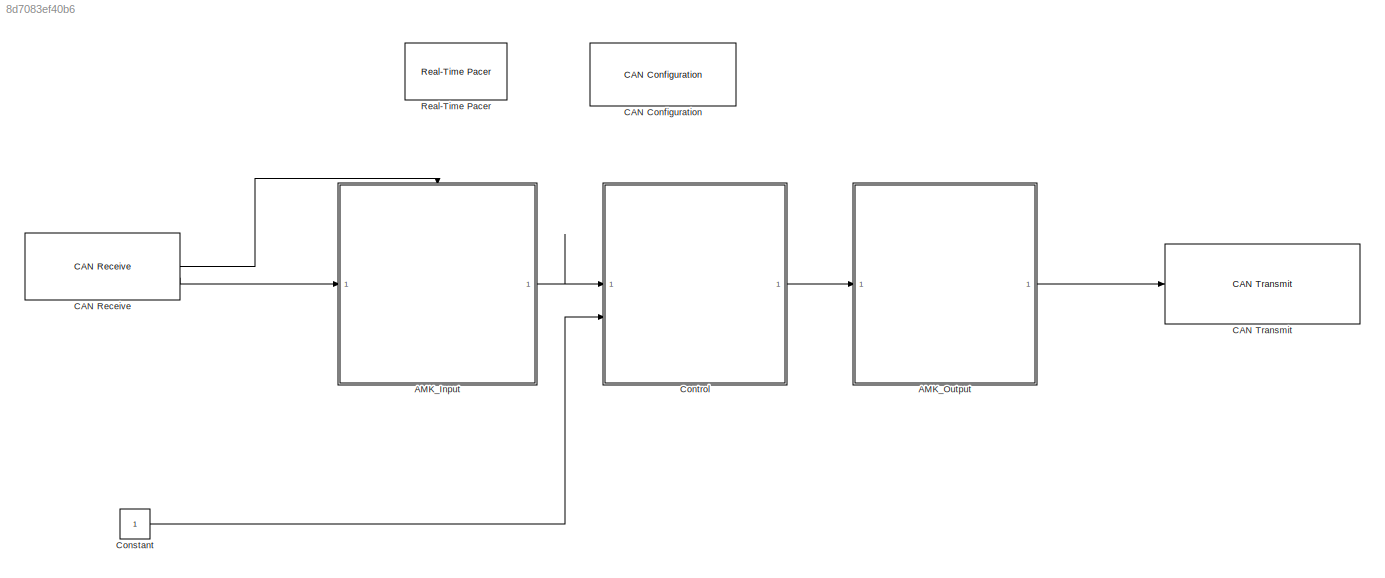
MODEL slx_8d7083ef40b6
KIND model
CONFIG AbsTol = auto
CONFIG EnableMultiTasking = on
CONFIG FixedStep = 0.005
CONFIG MaxStep = auto
CONFIG MinStep = auto
CONFIG RelTol = 1e-3
CONFIG SampleTimeConstraint = Unconstrained
CONFIG SolverName = FixedStepAuto
CONFIG StartTime = 0.0
CONFIG StopTime = inf
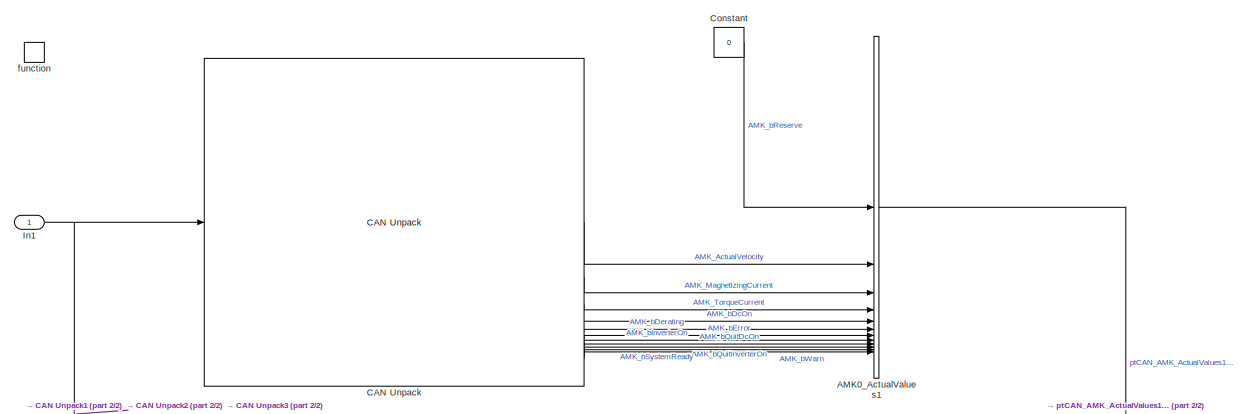
[diagram: AMK_Input - part 1/2, full width, top band]
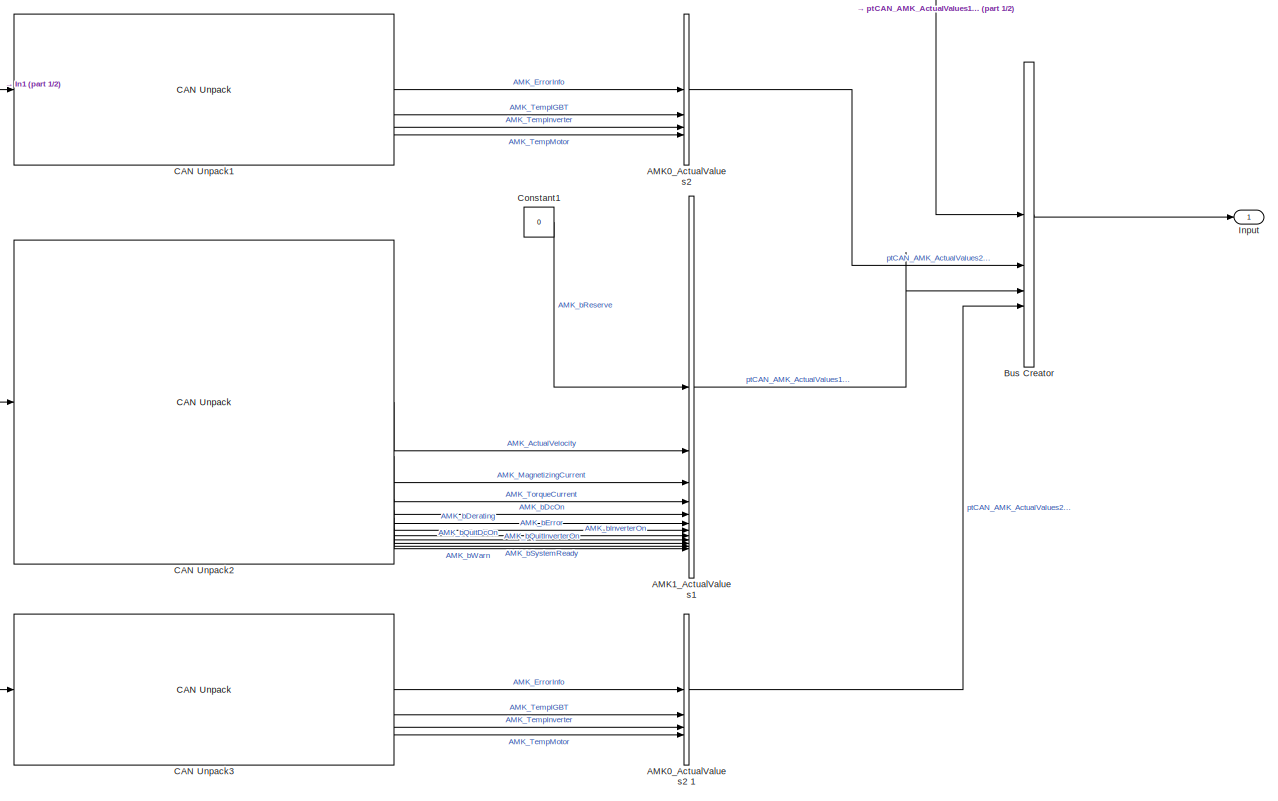
[diagram: AMK_Input - part 2/2, full width, bottom band]
BLOCK [SubSystem] AMK_Input
  TreatAsAtomicUnit = on
BLOCK [BusCreator] AMK_Input/AMK0_ActualValues1 
  DisplayOption = bar
  InheritFromInputs = on
  Inputs = 12
BLOCK [BusCreator] AMK_Input/AMK0_ActualValues2 
  DisplayOption = bar
  InheritFromInputs = on
  Inputs = 4
BLOCK [BusCreator] AMK_Input/AMK0_ActualValues2 1
  DisplayOption = bar
  InheritFromInputs = on
  Inputs = 4
BLOCK [BusCreator] AMK_Input/AMK1_ActualValues1
  DisplayOption = bar
  InheritFromInputs = on
  Inputs = 12
BLOCK [BusCreator] AMK_Input/Bus Creator
  DisplayOption = bar
  InheritFromInputs = on
  Inputs = 4
BLOCK [Reference] AMK_Input/CAN Unpack  REF=canmsglib/CAN Unpack
  LibrarySourceBlock = canlib/CAN Unpack
  SourceBlock = canmsglib/CAN Unpack
  SourceType = CAN Unpack
BLOCK [Reference] AMK_Input/CAN Unpack1  REF=canmsglib/CAN Unpack
  LibrarySourceBlock = canlib/CAN Unpack
  SourceBlock = canmsglib/CAN Unpack
  SourceType = CAN Unpack
BLOCK [Reference] AMK_Input/CAN Unpack2  REF=canmsglib/CAN Unpack
  LibrarySourceBlock = canlib/CAN Unpack
  SourceBlock = canmsglib/CAN Unpack
  SourceType = CAN Unpack
BLOCK [Reference] AMK_Input/CAN Unpack3  REF=canmsglib/CAN Unpack
  LibrarySourceBlock = canlib/CAN Unpack
  SourceBlock = canmsglib/CAN Unpack
  SourceType = CAN Unpack
BLOCK [Constant] AMK_Input/Constant
  Value = 0
BLOCK [Constant] AMK_Input/Constant1
  Value = 0
BLOCK [Inport] AMK_Input/In1
BLOCK [Outport] AMK_Input/Input
BLOCK [TriggerPort] AMK_Input/function
  StatesWhenEnabling = held
  TriggerType = function-call
  VariantControl = (inherit)
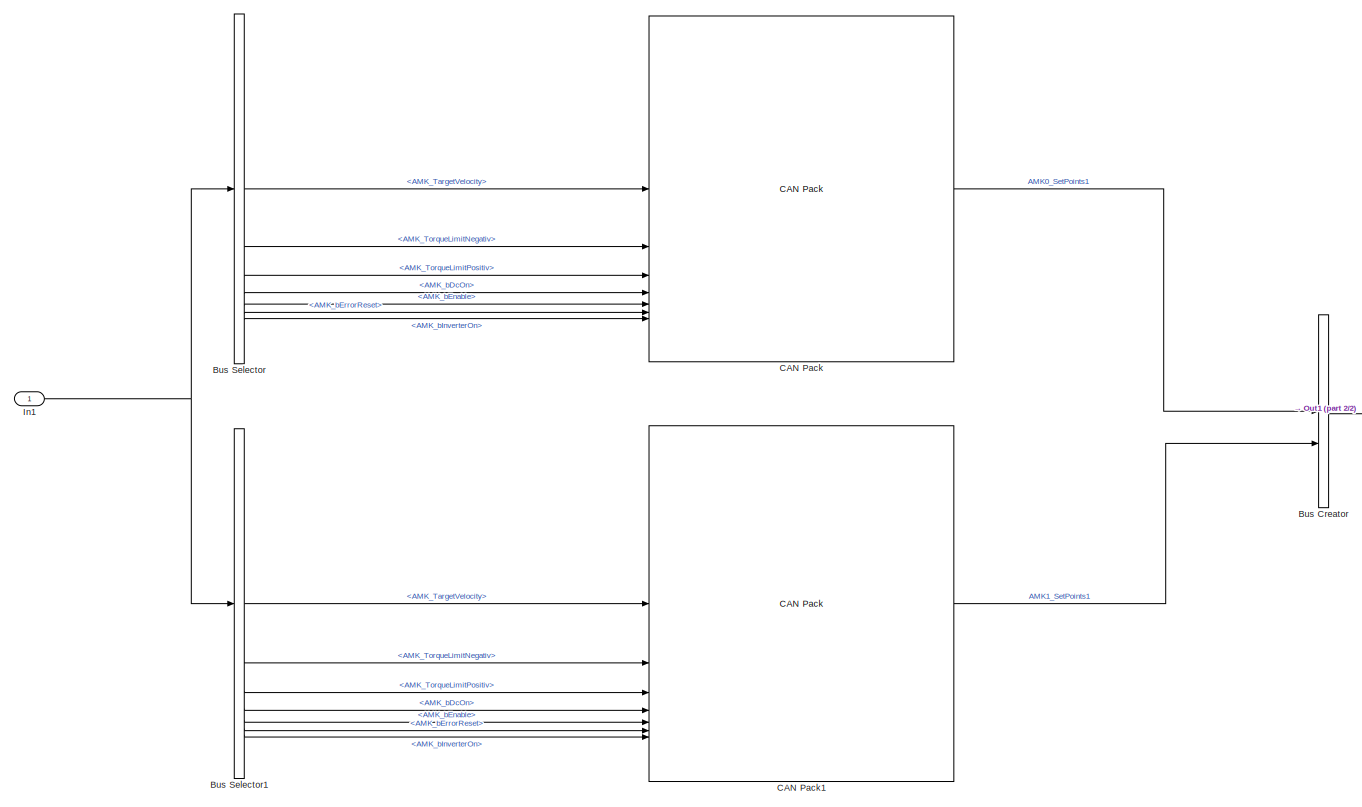
[diagram: AMK_Output - part 1/2, most of the canvas]
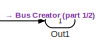
[diagram: AMK_Output - part 2/2, middle right region]
BLOCK [SubSystem] AMK_Output
BLOCK [BusCreator] AMK_Output/Bus Creator
  DisplayOption = bar
  InheritFromInputs = on
  Inputs = 2
BLOCK [BusSelector] AMK_Output/Bus Selector
  OutputSignals = ptCAN_AMK_Setpoints1_Right.AMK_TargetVelocity,ptCAN_AMK_Setpoints1_Right.AMK_TorqueLimitNegativ,ptCAN_AMK_Setpoints1_Right.AMK_TorqueLimitPositiv,ptCAN_AMK_Setpoints1_Right.AMK_bDcOn,ptCAN_AMK_Setpoints1_Right.AMK_bEnable,ptCAN_AMK_Setpoints1_Right.AMK_bErrorReset,ptCAN_AMK_Setpoints1_Right.AMK_bInverterOn
BLOCK [BusSelector] AMK_Output/Bus Selector1
  OutputSignals = ptCAN_AMK_Setpoints1_Left.AMK_TargetVelocity,ptCAN_AMK_Setpoints1_Left.AMK_TorqueLimitNegativ,ptCAN_AMK_Setpoints1_Left.AMK_TorqueLimitPositiv,ptCAN_AMK_Setpoints1_Left.AMK_bDcOn,ptCAN_AMK_Setpoints1_Left.AMK_bEnable,ptCAN_AMK_Setpoints1_Left.AMK_bErrorReset,ptCAN_AMK_Setpoints1_Left.AMK_bInverterOn
BLOCK [Reference] AMK_Output/CAN Pack  REF=canmsglib/CAN Pack
  LibrarySourceBlock = canlib/CAN Pack
  SourceBlock = canmsglib/CAN Pack
  SourceType = CAN Pack
BLOCK [Reference] AMK_Output/CAN Pack1  REF=canmsglib/CAN Pack
  LibrarySourceBlock = canlib/CAN Pack
  SourceBlock = canmsglib/CAN Pack
  SourceType = CAN Pack
BLOCK [Inport] AMK_Output/In1
BLOCK [Outport] AMK_Output/Out1
BLOCK [Reference] CAN Configuration  REF=canlib/CAN Configuration
  SourceBlock = canlib/CAN Configuration
  SourceType = CAN Configuration
BLOCK [Reference] CAN Receive  REF=canlib/CAN Receive
  SourceBlock = canlib/CAN Receive
  SourceType = CAN Receive
BLOCK [Reference] CAN Transmit  REF=canlib/CAN Transmit
  SourceBlock = canlib/CAN Transmit
  SourceType = CAN Transmit
BLOCK [Constant] Constant
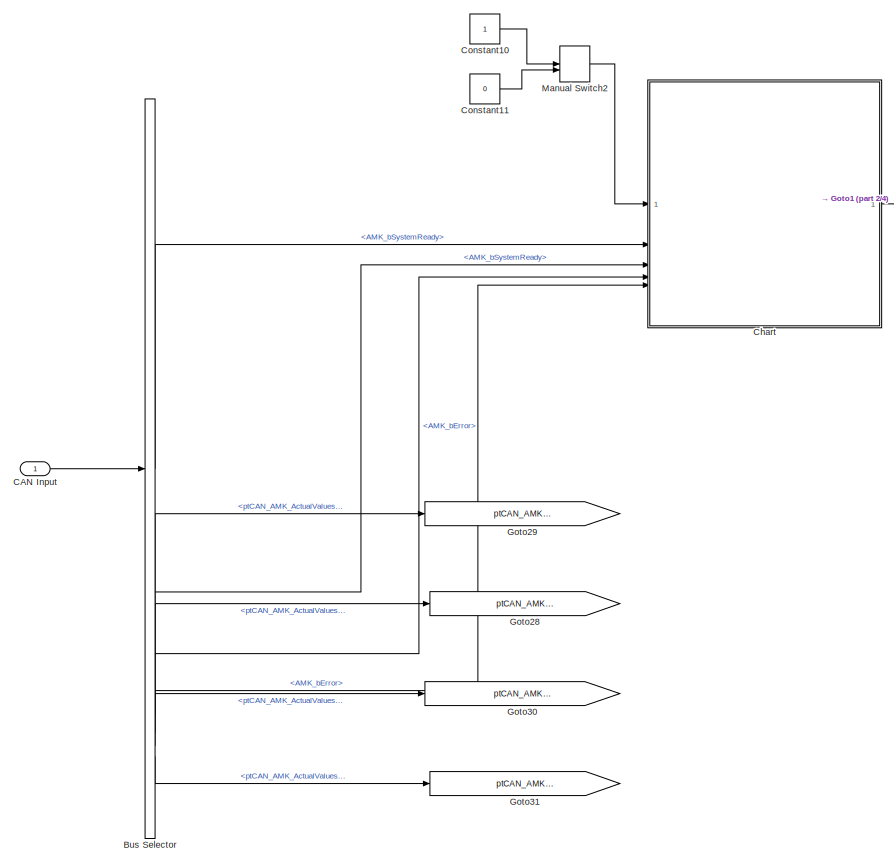
[diagram: Control - part 1/4, middle left region]
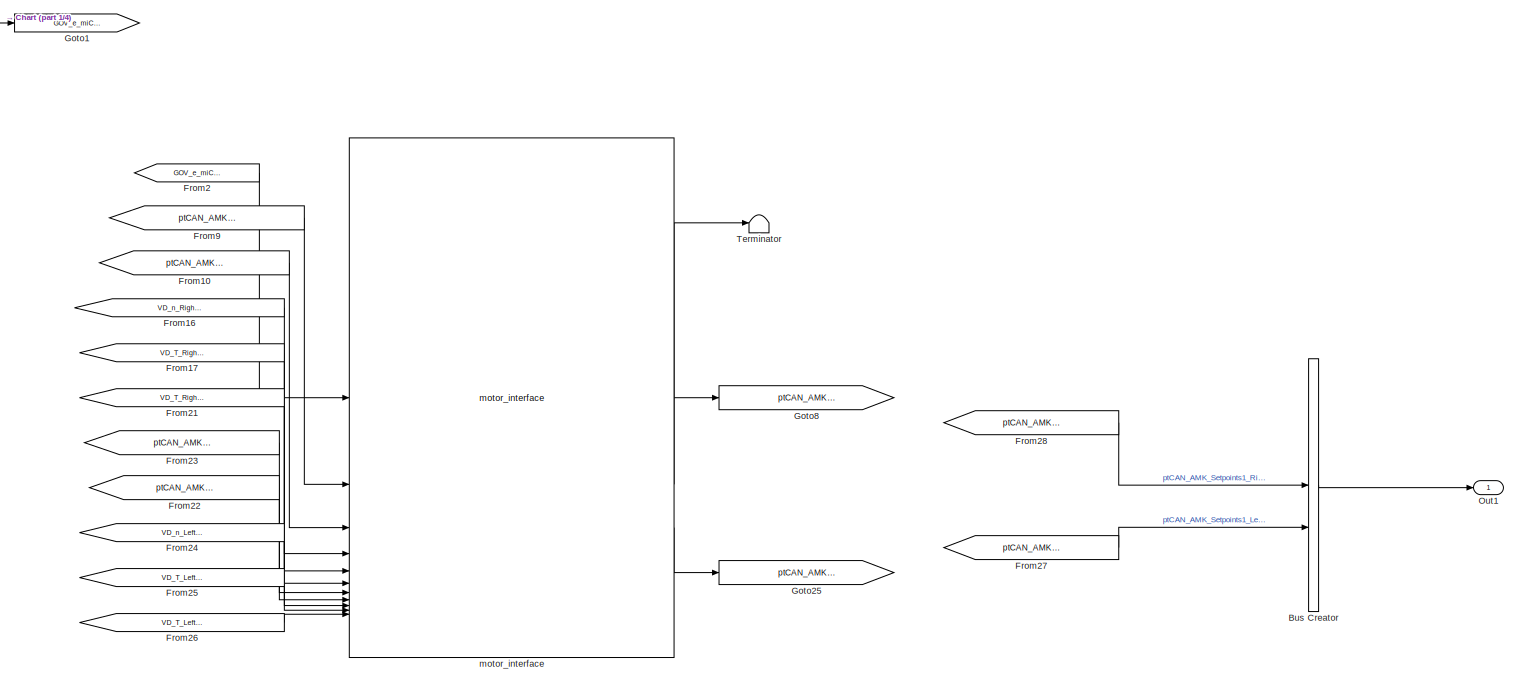
[diagram: Control - part 2/4, middle right region]
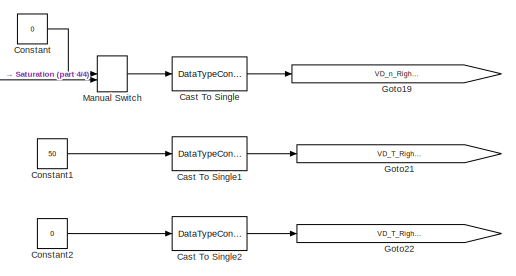
[diagram: Control - part 3/4, bottom right region]
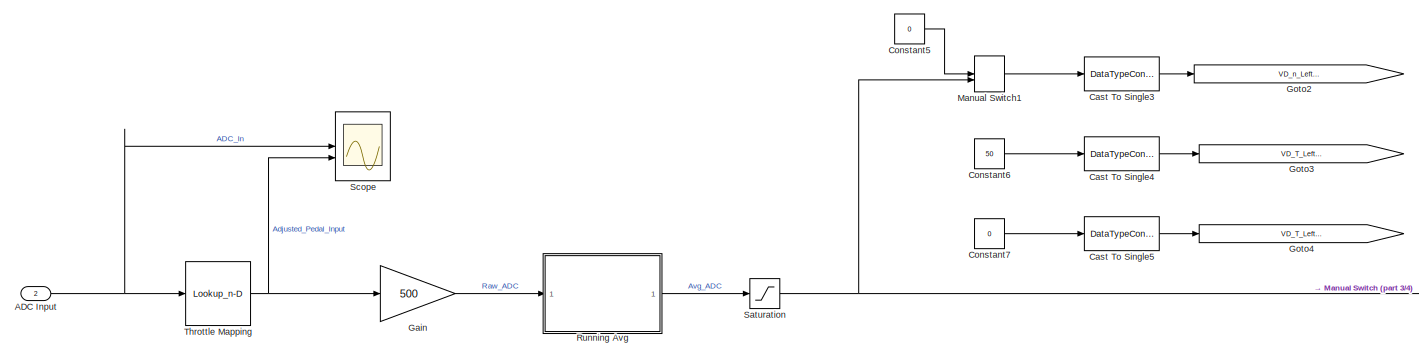
[diagram: Control - part 4/4, bottom left region]
BLOCK [SubSystem] Control
BLOCK [Inport] Control/ADC Input
  Port = 2
BLOCK [BusCreator] Control/Bus Creator
  DisplayOption = bar
  InheritFromInputs = on
  Inputs = 2
BLOCK [BusSelector] Control/Bus Selector
  OutputSignals = ptCAN_AMK_ActualValues1_Right.AMK_bSystemReady,ptCAN_AMK_ActualValues1_Left.AMK_bSystemReady,ptCAN_AMK_ActualValues1_Right.AMK_bError,ptCAN_AMK_ActualValues1_Left.AMK_bError,ptCAN_AMK_ActualValues1_Right,ptCAN_AMK_ActualValues2_Right,ptCAN_AMK_ActualValues1_Left,ptCAN_AMK_ActualValues2_Left
BLOCK [Inport] Control/CAN Input
BLOCK [DataTypeConversion] Control/Cast To Single
  OutDataTypeStr = single
  RndMeth = Floor
  SaturateOnIntegerOverflow = off
BLOCK [DataTypeConversion] Control/Cast To Single1
  OutDataTypeStr = single
  RndMeth = Floor
  SaturateOnIntegerOverflow = off
BLOCK [DataTypeConversion] Control/Cast To Single2
  OutDataTypeStr = single
  RndMeth = Floor
  SaturateOnIntegerOverflow = off
BLOCK [DataTypeConversion] Control/Cast To Single3
  OutDataTypeStr = single
  RndMeth = Floor
  SaturateOnIntegerOverflow = off
BLOCK [DataTypeConversion] Control/Cast To Single4
  OutDataTypeStr = single
  RndMeth = Floor
  SaturateOnIntegerOverflow = off
BLOCK [DataTypeConversion] Control/Cast To Single5
  OutDataTypeStr = single
  RndMeth = Floor
  SaturateOnIntegerOverflow = off
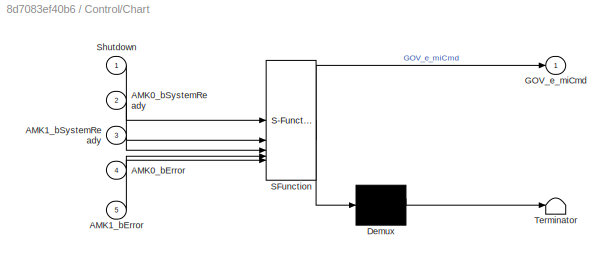
BLOCK [SubSystem] Control/Chart
  ErrorFcn = Stateflow.Translate.translate
  PermitHierarchicalResolution = ExplicitOnly
  SFBlockType = Chart
  TreatAsAtomicUnit = on
BLOCK [Demux] Control/Chart/ Demux 
  Outputs = 1
BLOCK [S-Function] Control/Chart/ SFunction 
  EnableBusSupport = on
  FunctionName = sf_sfun
  PortCounts = [5 2]
  SFcnIsStateOwnerBlock = off
  SFunctionDeploymentMode = off
  Tag = Stateflow S-Function 1
BLOCK [Terminator] Control/Chart/ Terminator 
BLOCK [Inport] Control/Chart/AMK0_bError
  Port = 4
BLOCK [Inport] Control/Chart/AMK0_bSystemReady
  Port = 2
BLOCK [Inport] Control/Chart/AMK1_bError
  Port = 5
BLOCK [Inport] Control/Chart/AMK1_bSystemReady
  Port = 3
BLOCK [Outport] Control/Chart/GOV_e_miCmd
BLOCK [Inport] Control/Chart/Shutdown
BLOCK [Constant] Control/Constant
  Value = 0
BLOCK [Constant] Control/Constant1
  Value = 50
BLOCK [Constant] Control/Constant10
BLOCK [Constant] Control/Constant11
  Value = 0
BLOCK [Constant] Control/Constant2
  Value = 0
BLOCK [Constant] Control/Constant5
  Value = 0
BLOCK [Constant] Control/Constant6
  Value = 50
BLOCK [Constant] Control/Constant7
  Value = 0
BLOCK [From] Control/From10
  GotoTag = ptCAN_AMK_ActualValues2_Right
BLOCK [From] Control/From16
  GotoTag = VD_n_RightMotorSpeedRequest
BLOCK [From] Control/From17
  GotoTag = VD_T_RightMotorTorqueLimitPositive
BLOCK [From] Control/From2
  GotoTag = GOV_e_miCmd
BLOCK [From] Control/From21
  GotoTag = VD_T_RightMotorTorqueLimitNegative
BLOCK [From] Control/From22
  GotoTag = ptCAN_AMK_ActualValues2_Left
BLOCK [From] Control/From23
  GotoTag = ptCAN_AMK_ActualValues1_Left
BLOCK [From] Control/From24
  GotoTag = VD_n_LeftMotorSpeedRequest
BLOCK [From] Control/From25
  GotoTag = VD_T_LeftMotorTorqueLimitPositive
BLOCK [From] Control/From26
  GotoTag = VD_T_LeftMotorTorqueLimitNegative
BLOCK [From] Control/From27
  GotoTag = ptCAN_AMK_Setpoints1_Left
BLOCK [From] Control/From28
  GotoTag = ptCAN_AMK_Setpoints1_Right
BLOCK [From] Control/From9
  GotoTag = ptCAN_AMK_ActualValues1_Right
BLOCK [Gain] Control/Gain
  Gain = 500
BLOCK [Goto] Control/Goto1
  GotoTag = GOV_e_miCmd
BLOCK [Goto] Control/Goto19
  GotoTag = VD_n_RightMotorSpeedRequest
BLOCK [Goto] Control/Goto2
  GotoTag = VD_n_LeftMotorSpeedRequest
BLOCK [Goto] Control/Goto21
  GotoTag = VD_T_RightMotorTorqueLimitPositive
BLOCK [Goto] Control/Goto22
  GotoTag = VD_T_RightMotorTorqueLimitNegative
BLOCK [Goto] Control/Goto25
  GotoTag = ptCAN_AMK_Setpoints1_Left
BLOCK [Goto] Control/Goto28
  GotoTag = ptCAN_AMK_ActualValues2_Right
BLOCK [Goto] Control/Goto29
  GotoTag = ptCAN_AMK_ActualValues1_Right
BLOCK [Goto] Control/Goto3
  GotoTag = VD_T_LeftMotorTorqueLimitPositive
BLOCK [Goto] Control/Goto30
  GotoTag = ptCAN_AMK_ActualValues1_Left
BLOCK [Goto] Control/Goto31
  GotoTag = ptCAN_AMK_ActualValues2_Left
BLOCK [Goto] Control/Goto4
  GotoTag = VD_T_LeftMotorTorqueLimitNegative
BLOCK [Goto] Control/Goto8
  GotoTag = ptCAN_AMK_Setpoints1_Right
BLOCK [ManualSwitch] Control/Manual Switch
  CurrentSetting = 0
BLOCK [ManualSwitch] Control/Manual Switch1
  CurrentSetting = 0
BLOCK [ManualSwitch] Control/Manual Switch2
  CurrentSetting = 0
BLOCK [Outport] Control/Out1
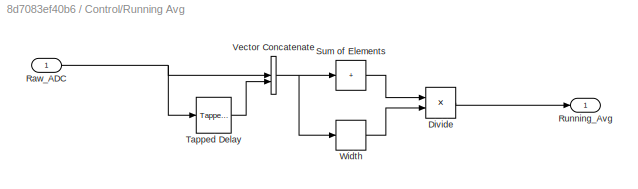
BLOCK [SubSystem] Control/Running Avg
BLOCK [Product] Control/Running Avg/Divide
  Inputs = */
BLOCK [Inport] Control/Running Avg/Raw_ADC
BLOCK [Outport] Control/Running Avg/Running_Avg
BLOCK [Sum] Control/Running Avg/Sum of Elements
  IconShape = rectangular
  Inputs = +
BLOCK [Reference] Control/Running Avg/Tapped Delay  REF=simulink/Discrete/Tapped Delay
  SourceBlock = simulink/Discrete/Tapped Delay
  SourceType = Tapped Delay Line
BLOCK [Concatenate] Control/Running Avg/Vector Concatenate
BLOCK [Width] Control/Running Avg/Width
BLOCK [Saturate] Control/Saturation
  LowerLimit = 0
  UpperLimit = 500
BLOCK [Scope] Control/Scope
  Floating = off
  NumInputPorts = 2
  ScopeSpecificationString = Simulink.scopes.TimeScopeBlockCfg('CurrentConfiguration', extmgr.ConfigurationSet(extmgr.Configuration('Core','General UI',true),extmgr.Configuration('Core','Source UI',true),extmgr.Configuration('Sources','WiredSimulink',true),extmgr.Configuration('Visuals','Time Domain',true,'SerializedDisplays',{struct('MinYLimReal','-0.125','MaxYLimReal','1.125','YLabelReal','','MinYLimMag','0.00000','MaxYLimM...<+1385ch>
BLOCK [Terminator] Control/Terminator
BLOCK [Lookup_n-D] Control/Throttle Mapping
  BreakpointsForDimension1 = [0:0.025:1]
  InputPortMap = u0
  InternalRulePriority = Speed
  NumberOfTableDimensions = 1
  RndMeth = Simplest
  Table = [0 0 0 linspace(0,1,36) 1 1]
  TableMax = [1]
BLOCK [Reference] Control/motor_interface  REF=motor_interface_lib/motor_interface  (lib defined in slx_5f2d46c379c1, slx_6012f76cf487)
  SourceBlock = motor_interface_lib/motor_interface
  SourceType = SubSystem
BLOCK [Reference] Real-Time Pacer  REF=realtime_pacer_lib/Real-Time Pacer
  Commented = on
  SourceBlock = realtime_pacer_lib/Real-Time Pacer
  SourceType = RealTime_Pacer
LINE AMK_Input/AMK0_ActualValues1 :1 -> AMK_Input/Bus Creator:1
LINE AMK_Input/AMK0_ActualValues2 1:1 -> AMK_Input/Bus Creator:4
LINE AMK_Input/AMK0_ActualValues2 :1 -> AMK_Input/Bus Creator:2
LINE AMK_Input/AMK1_ActualValues1:1 -> AMK_Input/Bus Creator:3
LINE AMK_Input/Bus Creator:1 -> AMK_Input/Input:1
LINE AMK_Input/CAN Unpack1:1 -> AMK_Input/AMK0_ActualValues2 :1
LINE AMK_Input/CAN Unpack1:2 -> AMK_Input/AMK0_ActualValues2 :2
LINE AMK_Input/CAN Unpack1:3 -> AMK_Input/AMK0_ActualValues2 :3
LINE AMK_Input/CAN Unpack1:4 -> AMK_Input/AMK0_ActualValues2 :4
LINE AMK_Input/CAN Unpack2:1 -> AMK_Input/AMK1_ActualValues1:2
LINE AMK_Input/CAN Unpack2:10 -> AMK_Input/AMK1_ActualValues1:11
LINE AMK_Input/CAN Unpack2:11 -> AMK_Input/AMK1_ActualValues1:12
LINE AMK_Input/CAN Unpack2:2 -> AMK_Input/AMK1_ActualValues1:3
LINE AMK_Input/CAN Unpack2:3 -> AMK_Input/AMK1_ActualValues1:4
LINE AMK_Input/CAN Unpack2:4 -> AMK_Input/AMK1_ActualValues1:5
LINE AMK_Input/CAN Unpack2:5 -> AMK_Input/AMK1_ActualValues1:6
LINE AMK_Input/CAN Unpack2:6 -> AMK_Input/AMK1_ActualValues1:7
LINE AMK_Input/CAN Unpack2:7 -> AMK_Input/AMK1_ActualValues1:8
LINE AMK_Input/CAN Unpack2:8 -> AMK_Input/AMK1_ActualValues1:9
LINE AMK_Input/CAN Unpack2:9 -> AMK_Input/AMK1_ActualValues1:10
LINE AMK_Input/CAN Unpack3:1 -> AMK_Input/AMK0_ActualValues2 1:1
LINE AMK_Input/CAN Unpack3:2 -> AMK_Input/AMK0_ActualValues2 1:2
LINE AMK_Input/CAN Unpack3:3 -> AMK_Input/AMK0_ActualValues2 1:3
LINE AMK_Input/CAN Unpack3:4 -> AMK_Input/AMK0_ActualValues2 1:4
LINE AMK_Input/CAN Unpack:1 -> AMK_Input/AMK0_ActualValues1 :2
LINE AMK_Input/CAN Unpack:10 -> AMK_Input/AMK0_ActualValues1 :11
LINE AMK_Input/CAN Unpack:11 -> AMK_Input/AMK0_ActualValues1 :12
LINE AMK_Input/CAN Unpack:2 -> AMK_Input/AMK0_ActualValues1 :3
LINE AMK_Input/CAN Unpack:3 -> AMK_Input/AMK0_ActualValues1 :4
LINE AMK_Input/CAN Unpack:4 -> AMK_Input/AMK0_ActualValues1 :5
LINE AMK_Input/CAN Unpack:5 -> AMK_Input/AMK0_ActualValues1 :6
LINE AMK_Input/CAN Unpack:6 -> AMK_Input/AMK0_ActualValues1 :7
LINE AMK_Input/CAN Unpack:7 -> AMK_Input/AMK0_ActualValues1 :8
LINE AMK_Input/CAN Unpack:8 -> AMK_Input/AMK0_ActualValues1 :9
LINE AMK_Input/CAN Unpack:9 -> AMK_Input/AMK0_ActualValues1 :10
LINE AMK_Input/Constant1:1 -> AMK_Input/AMK1_ActualValues1:1
LINE AMK_Input/Constant:1 -> AMK_Input/AMK0_ActualValues1 :1
NET AMK_Input/In1:1 -> AMK_Input/CAN Unpack1:1, AMK_Input/CAN Unpack2:1, AMK_Input/CAN Unpack3:1, AMK_Input/CAN Unpack:1
LINE AMK_Input:1 -> Control:1
LINE AMK_Output/Bus Creator:1 -> AMK_Output/Out1:1
LINE AMK_Output/Bus Selector1:1 -> AMK_Output/CAN Pack1:1
LINE AMK_Output/Bus Selector1:2 -> AMK_Output/CAN Pack1:2
LINE AMK_Output/Bus Selector1:3 -> AMK_Output/CAN Pack1:3
LINE AMK_Output/Bus Selector1:4 -> AMK_Output/CAN Pack1:4
LINE AMK_Output/Bus Selector1:5 -> AMK_Output/CAN Pack1:5
LINE AMK_Output/Bus Selector1:6 -> AMK_Output/CAN Pack1:6
LINE AMK_Output/Bus Selector1:7 -> AMK_Output/CAN Pack1:7
LINE AMK_Output/Bus Selector:1 -> AMK_Output/CAN Pack:1
LINE AMK_Output/Bus Selector:2 -> AMK_Output/CAN Pack:2
LINE AMK_Output/Bus Selector:3 -> AMK_Output/CAN Pack:3
LINE AMK_Output/Bus Selector:4 -> AMK_Output/CAN Pack:4
LINE AMK_Output/Bus Selector:5 -> AMK_Output/CAN Pack:5
LINE AMK_Output/Bus Selector:6 -> AMK_Output/CAN Pack:6
LINE AMK_Output/Bus Selector:7 -> AMK_Output/CAN Pack:7
LINE AMK_Output/CAN Pack1:1 -> AMK_Output/Bus Creator:2
LINE AMK_Output/CAN Pack:1 -> AMK_Output/Bus Creator:1
NET AMK_Output/In1:1 -> AMK_Output/Bus Selector1:1, AMK_Output/Bus Selector:1
LINE AMK_Output:1 -> CAN Transmit:1
LINE CAN Receive:1 -> AMK_Input:trigger
LINE CAN Receive:2 -> AMK_Input:1
LINE Constant:1 -> Control:2
NET Control/ADC Input:1 -> Control/Scope:1, Control/Throttle Mapping:1
LINE Control/Bus Creator:1 -> Control/Out1:1
LINE Control/Bus Selector:1 -> Control/Chart:2
LINE Control/Bus Selector:2 -> Control/Chart:3
LINE Control/Bus Selector:3 -> Control/Chart:4
LINE Control/Bus Selector:4 -> Control/Chart:5
LINE Control/Bus Selector:5 -> Control/Goto29:1
LINE Control/Bus Selector:6 -> Control/Goto28:1
LINE Control/Bus Selector:7 -> Control/Goto30:1
LINE Control/Bus Selector:8 -> Control/Goto31:1
LINE Control/CAN Input:1 -> Control/Bus Selector:1
LINE Control/Cast To Single1:1 -> Control/Goto21:1
LINE Control/Cast To Single2:1 -> Control/Goto22:1
LINE Control/Cast To Single3:1 -> Control/Goto2:1
LINE Control/Cast To Single4:1 -> Control/Goto3:1
LINE Control/Cast To Single5:1 -> Control/Goto4:1
LINE Control/Cast To Single:1 -> Control/Goto19:1
LINE Control/Chart:1 -> Control/Goto1:1
LINE Control/Constant10:1 -> Control/Manual Switch2:1
LINE Control/Constant11:1 -> Control/Manual Switch2:2
LINE Control/Constant1:1 -> Control/Cast To Single1:1
LINE Control/Constant2:1 -> Control/Cast To Single2:1
LINE Control/Constant5:1 -> Control/Manual Switch1:1
LINE Control/Constant6:1 -> Control/Cast To Single4:1
LINE Control/Constant7:1 -> Control/Cast To Single5:1
LINE Control/Constant:1 -> Control/Manual Switch:1
LINE Control/From10:1 -> Control/motor_interface:3
LINE Control/From16:1 -> Control/motor_interface:4
LINE Control/From17:1 -> Control/motor_interface:5
LINE Control/From21:1 -> Control/motor_interface:6
LINE Control/From22:1 -> Control/motor_interface:8
LINE Control/From23:1 -> Control/motor_interface:7
LINE Control/From24:1 -> Control/motor_interface:9
LINE Control/From25:1 -> Control/motor_interface:10
LINE Control/From26:1 -> Control/motor_interface:11
LINE Control/From27:1 -> Control/Bus Creator:2
LINE Control/From28:1 -> Control/Bus Creator:1
LINE Control/From2:1 -> Control/motor_interface:1
LINE Control/From9:1 -> Control/motor_interface:2
LINE Control/Gain:1 -> Control/Running Avg:1
LINE Control/Manual Switch1:1 -> Control/Cast To Single3:1
LINE Control/Manual Switch2:1 -> Control/Chart:1
LINE Control/Manual Switch:1 -> Control/Cast To Single:1
LINE Control/Running Avg/Divide:1 -> Control/Running Avg/Running_Avg:1
NET Control/Running Avg/Raw_ADC:1 -> Control/Running Avg/Tapped Delay:1, Control/Running Avg/Vector Concatenate:1
LINE Control/Running Avg/Sum of Elements:1 -> Control/Running Avg/Divide:1
LINE Control/Running Avg/Tapped Delay:1 -> Control/Running Avg/Vector Concatenate:2
NET Control/Running Avg/Vector Concatenate:1 -> Control/Running Avg/Sum of Elements:1, Control/Running Avg/Width:1
LINE Control/Running Avg/Width:1 -> Control/Running Avg/Divide:2
LINE Control/Running Avg:1 -> Control/Saturation:1
NET Control/Saturation:1 -> Control/Manual Switch1:2, Control/Manual Switch:2
NET Control/Throttle Mapping:1 -> Control/Gain:1, Control/Scope:2
LINE Control/motor_interface:1 -> Control/Terminator:1
LINE Control/motor_interface:2 -> Control/Goto8:1
LINE Control/motor_interface:3 -> Control/Goto25:1
LINE Control:1 -> AMK_Output:1
note: NET lines group one-source signal fan-out (src -> all destinations, sorted); 1:1 wires keep LINE
CHART Control/Chart states=5 transitions=8
  STATE_LABEL 'Init\nen:\nGOV_e_miCmd = MI_CMD.CMD_INIT;'
  STATE_LABEL 'Run\nen:\nGOV_e_miCmd = MI_CMD.CMD_STARTUP;'
  STATE_LABEL 'Error0\nen:\nGOV_e_miCmd = MI_CMD.ERR_RESET;\n'
  STATE_LABEL 'Error1\nen:\nGOV_e_miCmd = MI_CMD.ERR_RESET;\n'
  STATE_LABEL 'Shutdown\nen:\nGOV_e_miCmd = MI_CMD.CMD_SHUTDOWN;'
CHART  states=0 transitions=0
